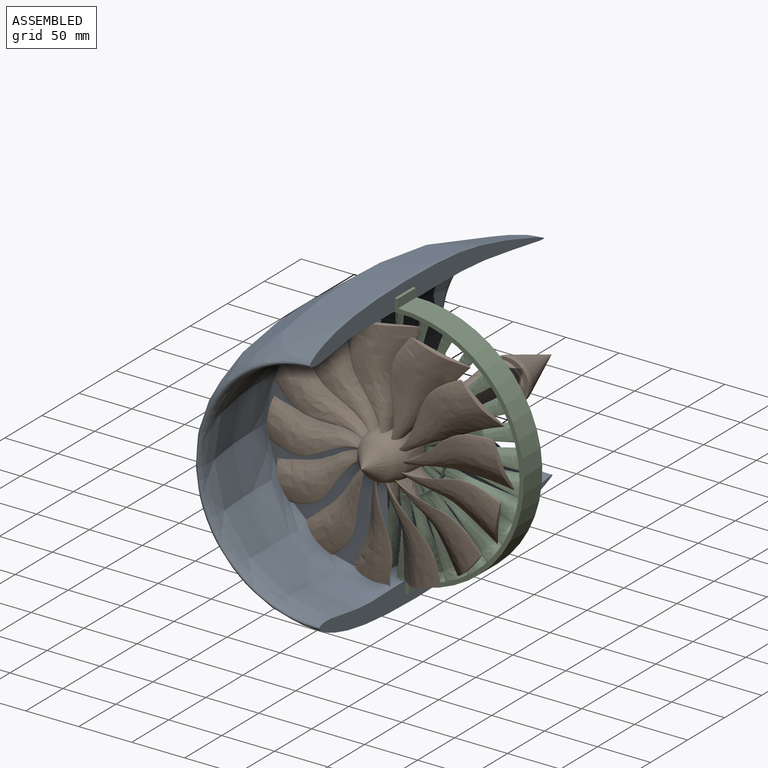
[diagram: assembled view]
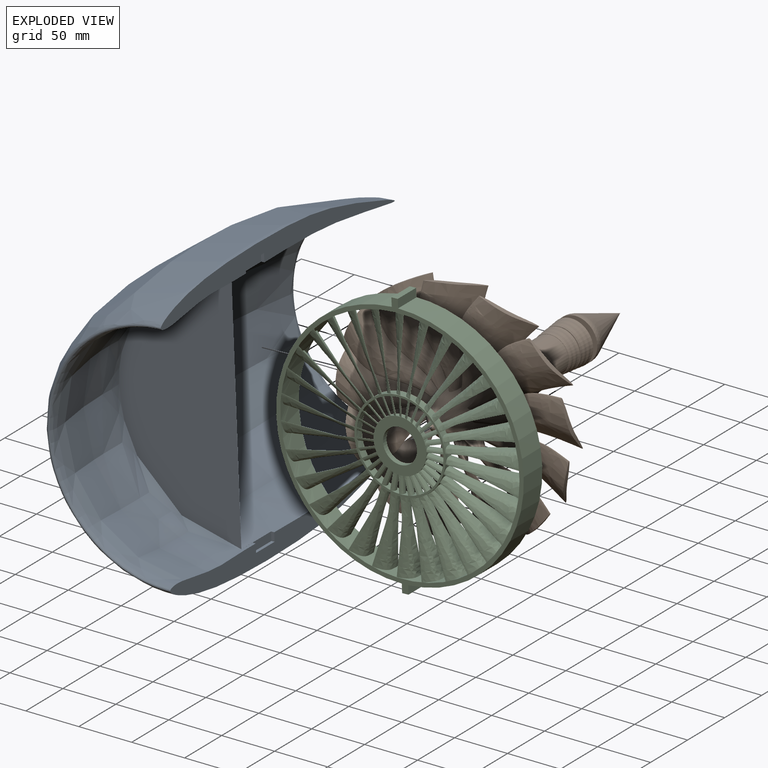
[diagram: exploded view]
GUIDED TOUR — MATED ASSEMBLY WITH SUBASSEMBLIES (Onshape document 25e5f7120bf1b2f45c059222, AutoMate assembly 25e5f7120bf1b2f45c059222_7cb774750ce1b9bcfdf965f8_65849fbbaa7d7448154517cb_default)

This assembly has 8 component occurrences arranged in 3 top-level units: 2 individual components plus 1 subassembly (S0). The tour has two levels: first the top level, where each subassembly is treated as one rigid unit; then each subassembly is toured internally in its own section (nesting deeper than one subassembly level is flattened into its subassembly's section).

Components are labeled P0..P7 across the whole record; subassembly units are labeled S0..S0. A mate is a constraint between two units; its type names the relative motion it leaves free:
  CYLINDRICAL — leaves both rotation about and translation along the listed axis free,
  PLANAR — leaves sliding in the plane through the listed point (normal = the listed direction) and rotation about that normal free,
  SLIDER — leaves translation along the listed axis free.
Axis/direction vectors are unit vectors and 'through' points are millimeter coordinates, both in the assembly's world frame.

TOP-LEVEL MATES (between units; each subassembly's internal mates are listed in its own section)
  1. PLANAR "Planar 1": P3 <-> P0, direction (-0.999, 0.000, -0.041) through (-118.48, 17.94, 122.36) mm
  2. CYLINDRICAL "Cylindrical 1": P3 <-> S0, axis (0.000, 1.000, 0.000) through (-110.56, 18.05, 1.60) mm
  3. CYLINDRICAL "Cylindrical 2": P3 <-> P0, axis (0.000, 1.000, 0.000) through (-110.56, 30.55, 1.60) mm
  4. PLANAR "Planar 2": P0 <-> P3, direction (0.000, 1.000, 0.000) through (-115.20, 5.55, 115.50) mm

TOP-LEVEL ASSEMBLY ORDER
  1. P3 — the base component [order heuristic]
  2. P0 [order heuristic]
  3. S0 [order heuristic]
Order-tag legend:
  [order heuristic] — this assembly is geometrically interlocked (no collision-free removal order exists), so components are listed in mate-graph order; insertion feasibility is not verified.

Of the 8 component occurrences, 5 carry the full construction recipe — the FeatureScript program that regenerates the part's solid from scratch; the rest are supplied as boundary geometry only. Each toured unit is shown spotlighted twice — assembled, then exploded with a leader line back to its socket (green = recipe-attached component, orange = geometry-only, blue = subassembly unit; the rest desaturated gray).
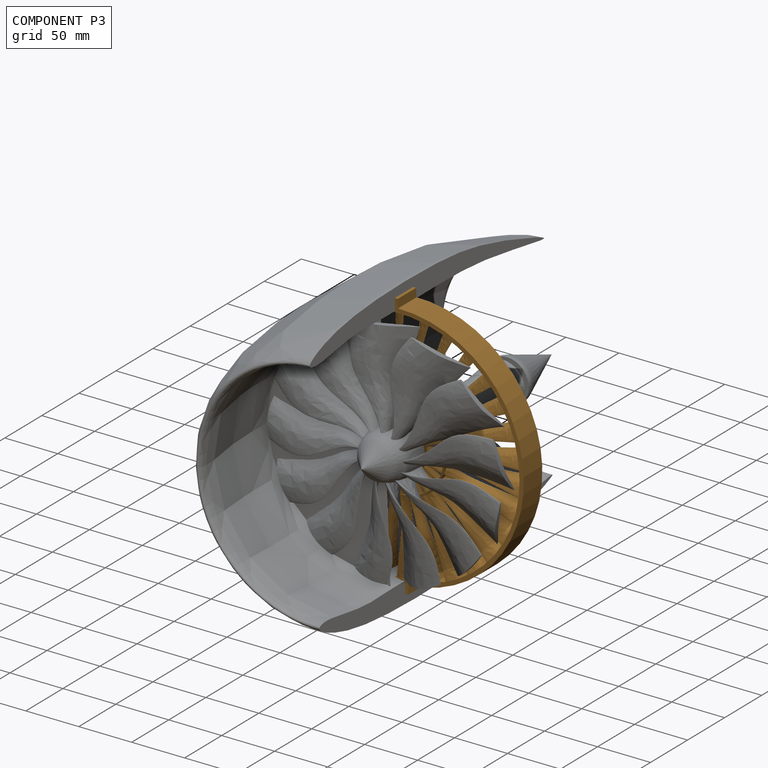
[diagram: component P3 — assembled]
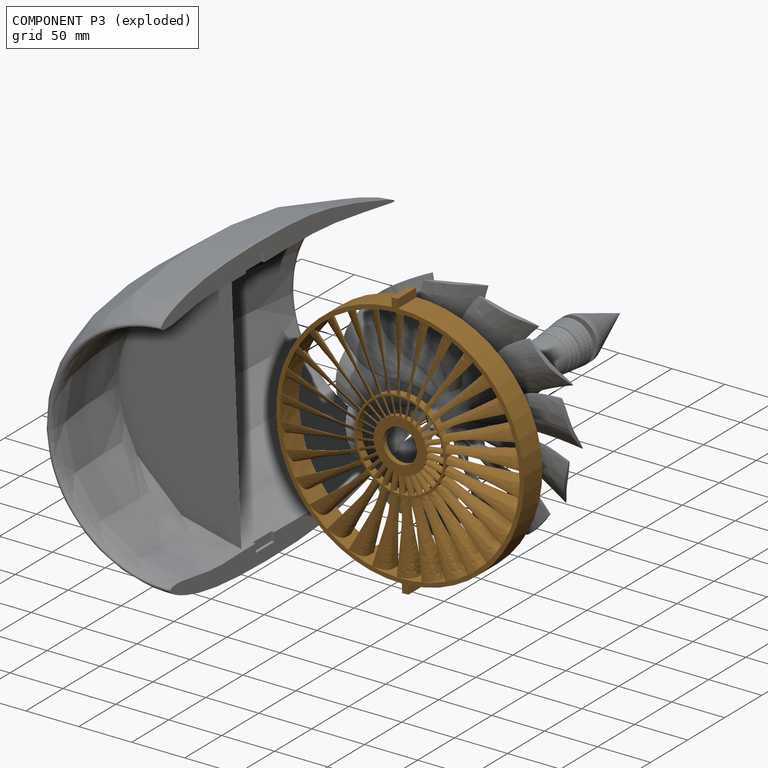
[diagram: component P3 — exploded]
COMPONENT P3 — geometry summary (no construction recipe available for this part):
  bounding box: 250.0 x 234.0 x 25.0 mm
  B-rep topology: 1 solid, 80 faces, 584 edges
  volume: 18700 mm^3 (1% of its bounding box)
  symmetry: 2-fold rotationally symmetric about the y axis
Held by: PLANAR mate "Planar 1" to P0; CYLINDRICAL mate "Cylindrical 1" to P1; CYLINDRICAL mate "Cylindrical 2" to P0; PLANAR mate "Planar 2" to P0.
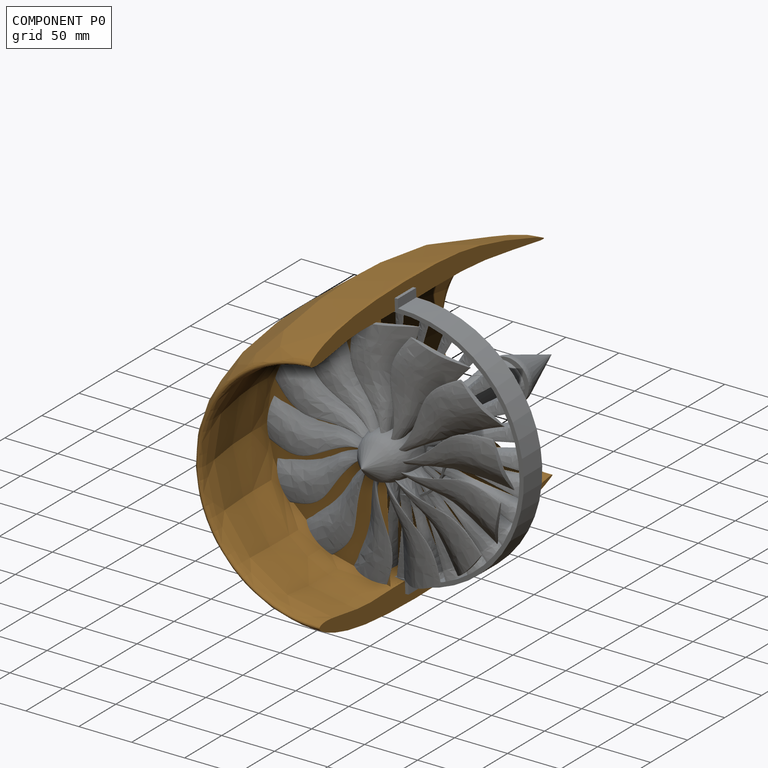
[diagram: component P0 — assembled]
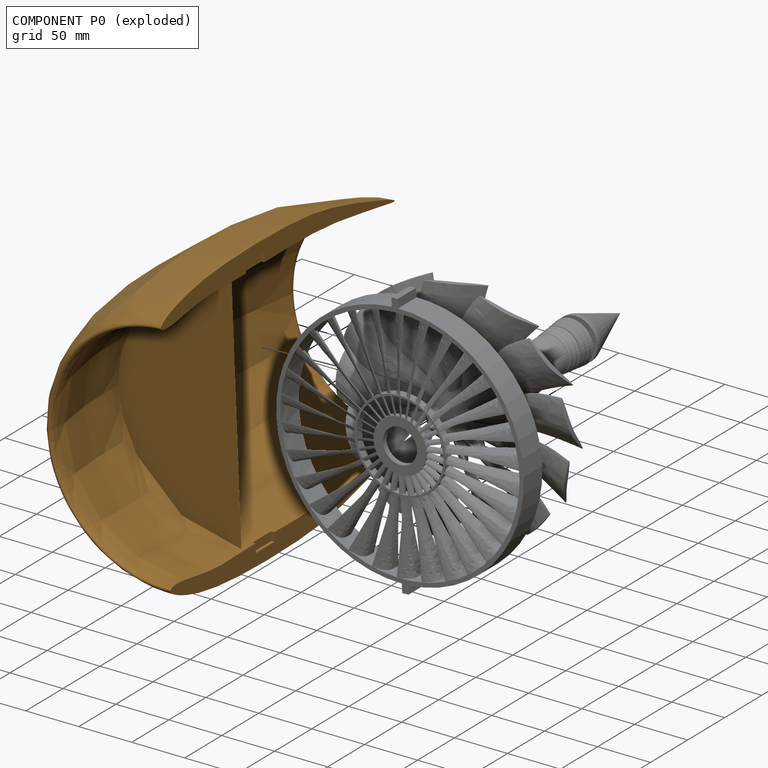
[diagram: component P0 — exploded]
COMPONENT P0 — geometry summary (no construction recipe available for this part):
  bounding box: 322.5 x 269.2 x 133.7 mm
  B-rep topology: 1 solid, 15 faces, 70 edges
  volume: 1758936 mm^3 (15% of its bounding box)
  symmetry: mirror-symmetric across its z mid-plane
Held by: PLANAR mate "Planar 1" to P3; CYLINDRICAL mate "Cylindrical 2" to P3; PLANAR mate "Planar 2" to P3.
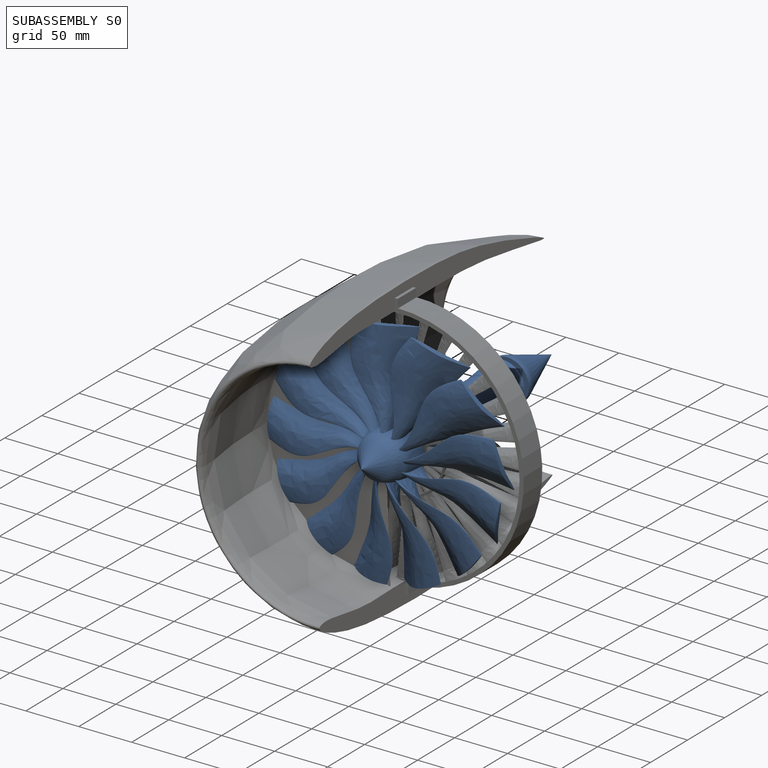
[diagram: subassembly S0 — assembled]
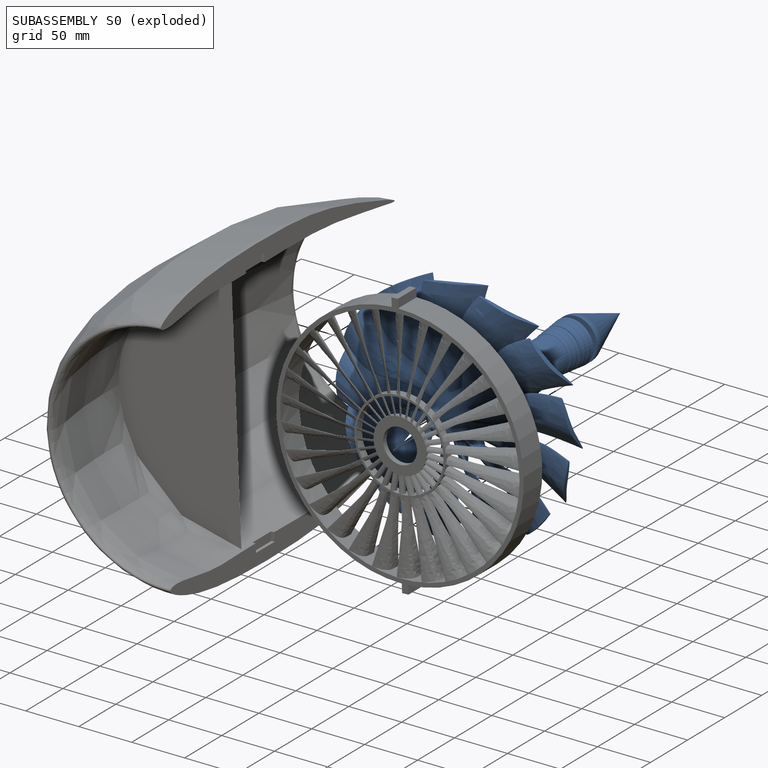
[diagram: subassembly S0 — exploded]
SUBASSEMBLY S0 — 6 components (P1, P2, P4, P5, P6, P7), of which 5 recipe-attached; toured below.
Held by: CYLINDRICAL mate "Cylindrical 1" to P3.
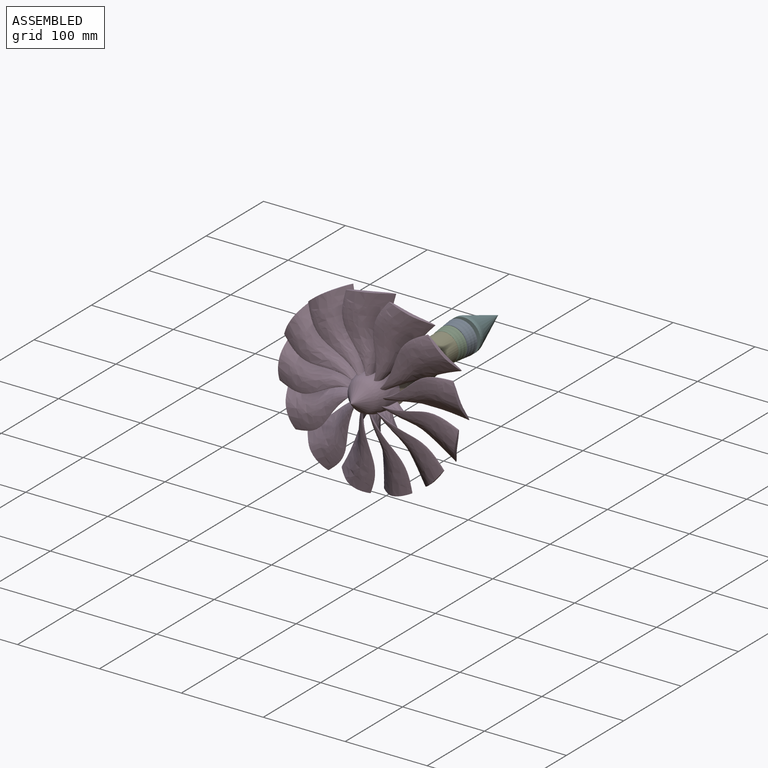
[diagram: subassembly S0 — assembled view]
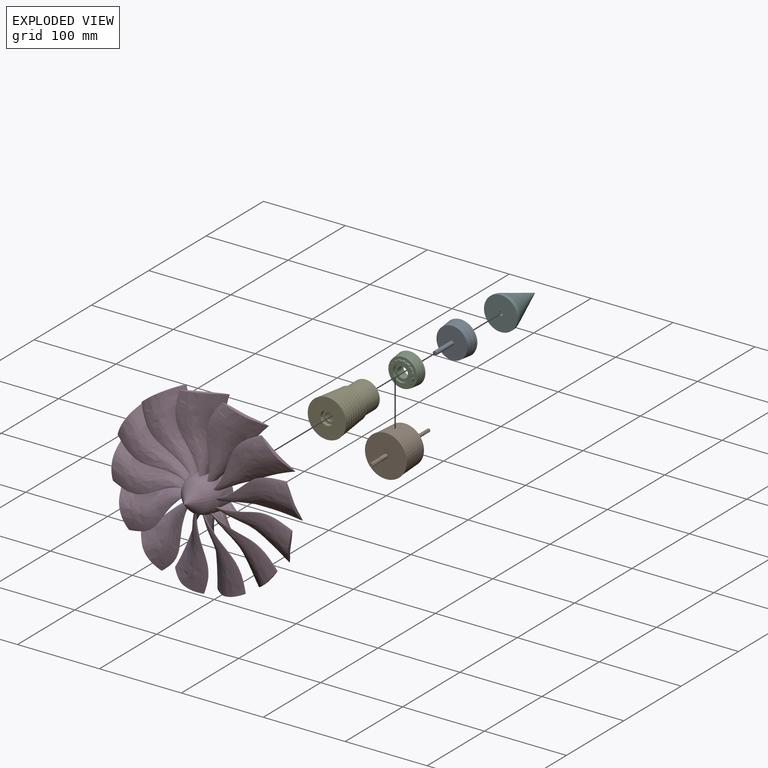
[diagram: subassembly S0 — exploded view]
SUBASSEMBLY S0 TOUR — 6 components, shown here in isolation at its own camera.

INTERNAL MATES
  1. PLANAR "Planar 1": P5 <-> P2, direction (0.000, 1.000, 0.000) through (-110.56, 3.41, 1.60) mm
  2. PLANAR "Planar 4": P7 <-> P1, direction (0.000, -1.000, 0.000) through (-110.56, 150.22, 1.60) mm
  3. CYLINDRICAL "Cylindrical 1": P6 <-> P2, axis (0.000, -1.000, 0.000) through (-110.56, 91.41, 1.60) mm
  4. CYLINDRICAL "Cylindrical 4": P7 <-> P1, axis (0.000, -1.000, 0.000) through (-110.56, 150.22, 1.60) mm
  5. CYLINDRICAL "Cylindrical 2": P6 <-> P4, axis (0.000, -1.000, 0.000) through (-110.56, 103.91, 1.60) mm
  6. SLIDER "Slider 1": P2 <-> P5, axis (0.000, 1.000, 0.000) through (-110.56, 8.91, 1.60) mm
  7. PLANAR "Planar 2": P6 <-> P4, direction (0.000, 1.000, 0.000) through (-96.98, 116.41, 7.97) mm
  8. PLANAR "Planar 3": P6 <-> P2, direction (0.000, -1.000, 0.000) through (-110.56, 53.41, 1.60) mm
  9. CYLINDRICAL "Cylindrical 3": P4 <-> P1, axis (0.000, -1.000, 0.000) through (-110.56, 118.91, 1.60) mm
  10. CYLINDRICAL "Cylindrical 4": P7 <-> P1, axis (0.000, -1.000, 0.000) through (-110.56, 150.22, 1.60) mm
  11. CYLINDRICAL "Cylindrical 1": P6 <-> P2, axis (0.000, -1.000, 0.000) through (-110.56, 91.41, 1.60) mm
  12. PLANAR "Planar 3": P6 <-> P2, direction (0.000, -1.000, 0.000) through (-110.56, 53.41, 1.60) mm
  13. SLIDER "Slider 1": P2 <-> P5, axis (0.000, 1.000, 0.000) through (-110.56, 8.91, 1.60) mm
  14. CYLINDRICAL "Cylindrical 3": P4 <-> P1, axis (0.000, -1.000, 0.000) through (-110.56, 118.91, 1.60) mm
  15. CYLINDRICAL "Cylindrical 2": P6 <-> P4, axis (0.000, -1.000, 0.000) through (-110.56, 103.91, 1.60) mm
  16. PLANAR "Planar 4": P7 <-> P1, direction (0.000, -1.000, 0.000) through (-110.56, 150.22, 1.60) mm
  17. PLANAR "Planar 2": P6 <-> P4, direction (0.000, 1.000, 0.000) through (-96.98, 116.41, 7.97) mm
  18. PLANAR "Planar 1": P5 <-> P2, direction (0.000, 1.000, 0.000) through (-110.56, 3.41, 1.60) mm

ASSEMBLY ORDER (within the subassembly)
  1. P1 — the base component [order heuristic]
  2. P4 [order verified]
  3. P7 — core [order heuristic]
  4. P6 [order verified]
  5. P2 [order verified]
  6. P5 [order verified]
(P6 verified with a relaxed clearance tolerance: the source model stores slight part interference there.)
Order-tag legend:
  [order verified] — this step's position reverses a verified removal order: the component was checked to insert without passing through the ones already placed.
  [order heuristic] — the first 2 components form the assembly's core: parts whose collision-free extraction could not be verified, listed in mate-graph order.
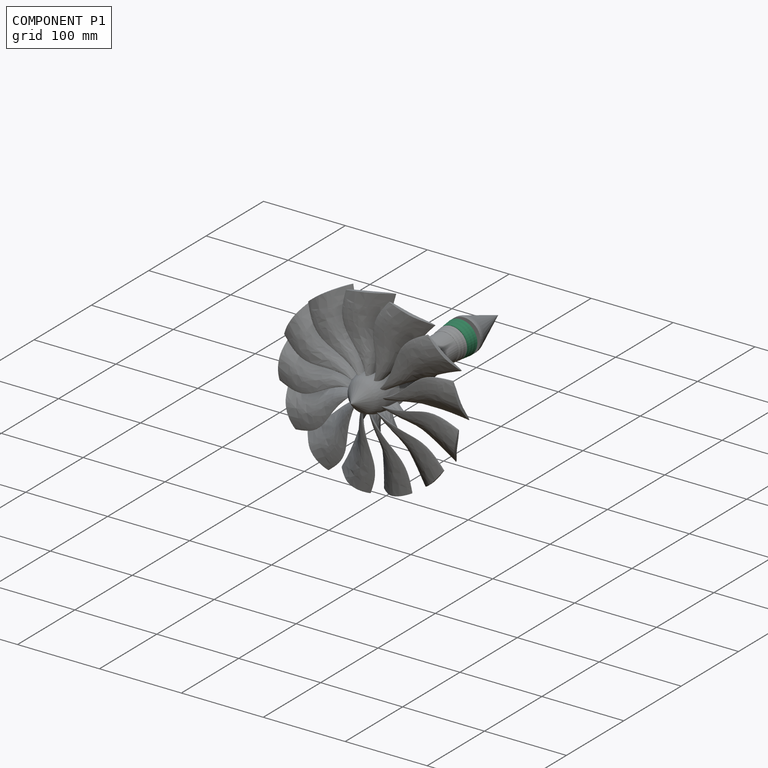
[diagram: component P1 — assembled]
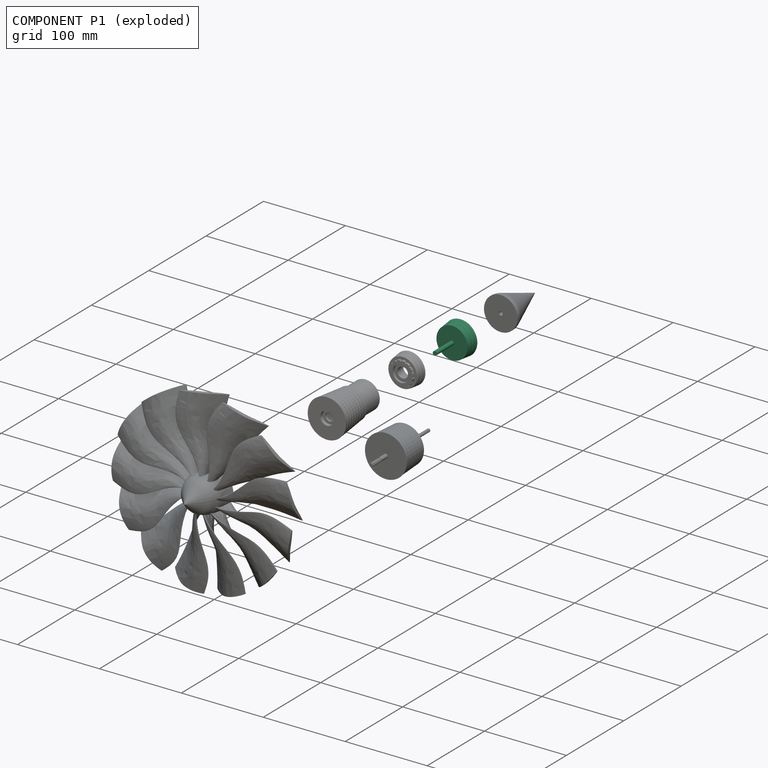
[diagram: component P1 — exploded]
COMPONENT P1 — recipe-attached (CADFS 00669145, mesh-verified: the recipe's output STEP matches this component's geometry to below the mesh-comparison resolution (tessellation chordal tolerance ~0.126 mm)).
Held by: PLANAR mate "Planar 4" to P7; CYLINDRICAL mate "Cylindrical 4" to P7; CYLINDRICAL mate "Cylindrical 3" to P4; CYLINDRICAL mate "Cylindrical 4" to P7; CYLINDRICAL mate "Cylindrical 3" to P4; PLANAR mate "Planar 4" to P7.
Construction recipe (FeatureScript — the CAD program that rebuilds this solid; sketch coordinates are in the units given by the * unit suffixes, e.g. mm):

FeatureScript 1511;
import(path : "onshape/std/geometry.fs", version : "1511.0");
import(path : "onshape/std/common.fs", version : "1511.0");
const mm = millimeter;
const VERTEX = EntityType.VERTEX;
const EDGE = EntityType.EDGE;
const FACE = EntityType.FACE;
const BODY = EntityType.BODY;
function v(x, y){return vector(x, y);}
function OD(order){return orderDisambiguation(order);}
function OSD(set){return originalSetDisambiguation(set);}
function TD(topology){return topologyDisambiguation(topology);}
function TDD(query){return trueDependencyDisambiguation(query);}
function sQuery(a, b, c) {return sketchEntityQuery(a, b, c);}

annotation { "Feature Type Name" : "Feature", "Feature Type Description" : "" }
export const myFeature = defineFeature(function(context is Context, id is Id, definition is map)
    precondition{}
    {
        {
            var Q0;
            Q0=qCreatedBy(makeId("Right.planeOp"),FACE);
            var sketch = newSketch(context, id + "F0", { "sketchPlane" : qUnion([Q0])});
            skLineSegment(sketch, "E0", {"start": v(0, 0) * mm, "end": v(-30, 0) * mm, "construction": true});
            skLineSegment(sketch, "E1", {"start": v(-30, 0) * mm, "end": v(-30, 2.47) * mm});
            skLineSegment(sketch, "E2", {"start": v(-30, 2.48) * mm, "end": v(0, 2.48) * mm});
            skLineSegment(sketch, "E3", {"start": v(0, 2.47) * mm, "end": v(0, 19) * mm});
            skLineSegment(sketch, "E4", {"start": v(0, 19) * mm, "end": v(2.5, 19) * mm});
            skLineSegment(sketch, "E5", {"start": v(2.5, 19) * mm, "end": v(5, 19.5) * mm});
            skLineSegment(sketch, "E6", {"start": v(5, 19.5) * mm, "end": v(7.5, 19.5) * mm});
            skLineSegment(sketch, "E7", {"start": v(7.5, 19.5) * mm, "end": v(10, 20) * mm});
            skLineSegment(sketch, "E8", {"start": v(10, 20) * mm, "end": v(12.5, 20) * mm});
            skLineSegment(sketch, "E9", {"start": v(12.5, 20) * mm, "end": v(15, 20.5) * mm});
            skLineSegment(sketch, "E10", {"start": v(15, 20.5) * mm, "end": v(15, 2.48) * mm});
            skLineSegment(sketch, "E11", {"start": v(15, 2.48) * mm, "end": v(20.5, 2.48) * mm});
            skLineSegment(sketch, "E12", {"start": v(30.5, 0) * mm, "end": v(-30, 0) * mm});
            skLineSegment(sketch, "E13", {"start": v(20.5, 2.48) * mm, "end": v(20.5, 2) * mm});
            skLineSegment(sketch, "E14", {"start": v(20.5, 2) * mm, "end": v(30.5, 2) * mm});
            skLineSegment(sketch, "E15", {"start": v(30.5, 2) * mm, "end": v(30.5, 0) * mm});
            skSolve(sketch);
        }
        {
            var Q0;
            Q0 = qSketchRegion(id + "F0", true);
            var Q1;
            Q1=sQuery(id+"F0.wireOp",EDGE,"E12");
            revolve(context, id + "F1", {"entities" : qUnion([Q0]), "axis" : qUnion([Q1]), "revolveType" : RevolveType.FULL});
        }
    });
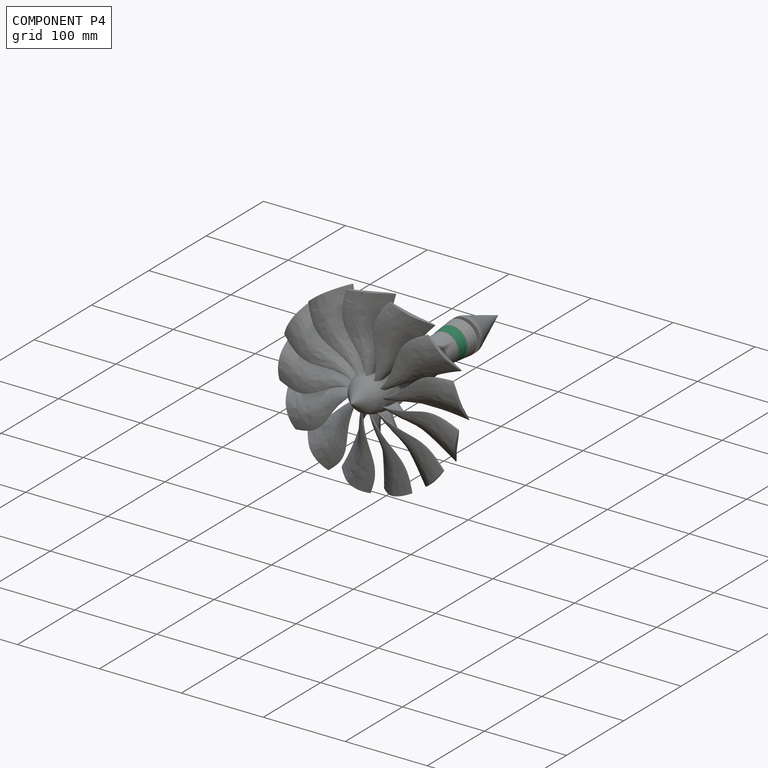
[diagram: component P4 — assembled]
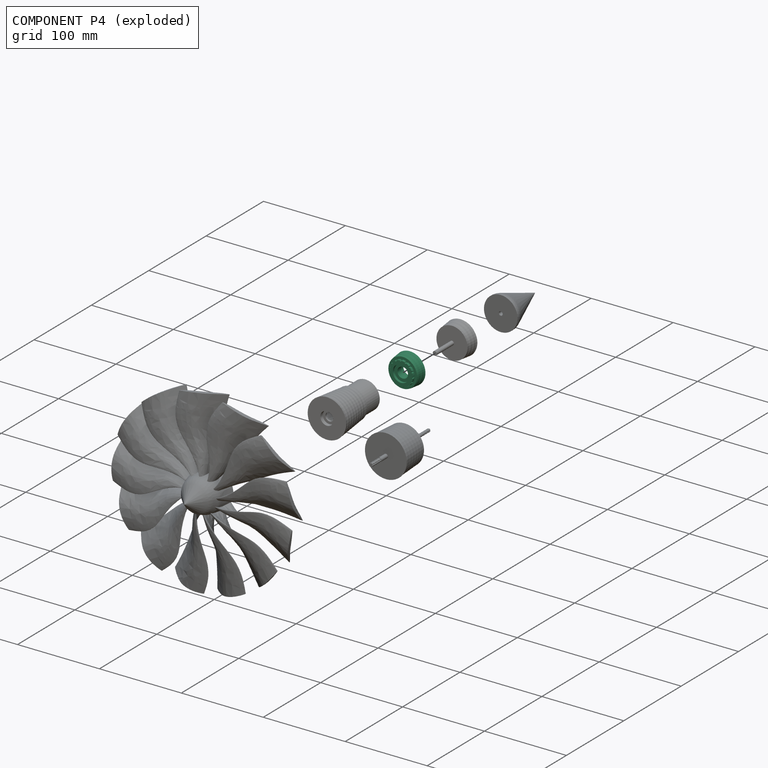
[diagram: component P4 — exploded]
COMPONENT P4 — recipe-attached (CADFS 00669142, mesh-verified: the recipe's output STEP matches this component's geometry to below the mesh-comparison resolution (tessellation chordal tolerance ~0.0839 mm)).
Held by: CYLINDRICAL mate "Cylindrical 2" to P6; PLANAR mate "Planar 2" to P6; CYLINDRICAL mate "Cylindrical 3" to P1; CYLINDRICAL mate "Cylindrical 3" to P1; CYLINDRICAL mate "Cylindrical 2" to P6; PLANAR mate "Planar 2" to P6.
Construction recipe (FeatureScript — the CAD program that rebuilds this solid; sketch coordinates are in the units given by the * unit suffixes, e.g. mm):

FeatureScript 1511;
import(path : "onshape/std/geometry.fs", version : "1511.0");
import(path : "onshape/std/common.fs", version : "1511.0");
const mm = millimeter;
const VERTEX = EntityType.VERTEX;
const EDGE = EntityType.EDGE;
const FACE = EntityType.FACE;
const BODY = EntityType.BODY;
function v(x, y){return vector(x, y);}
function OD(order){return orderDisambiguation(order);}
function OSD(set){return originalSetDisambiguation(set);}
function TD(topology){return topologyDisambiguation(topology);}
function TDD(query){return trueDependencyDisambiguation(query);}
function sQuery(a, b, c) {return sketchEntityQuery(a, b, c);}

annotation { "Feature Type Name" : "Feature", "Feature Type Description" : "" }
export const myFeature = defineFeature(function(context is Context, id is Id, definition is map)
    precondition{}
    {
        {
            var Q0;
            Q0=qCreatedBy(makeId("Right.planeOp"),FACE);
            var sketch = newSketch(context, id + "F0", { "sketchPlane" : qUnion([Q0])});
            skLineSegment(sketch, "E0", {"start": v(0, 0) * mm, "end": v(41.77, 0) * mm, "construction": true});
            skLineSegment(sketch, "E1", {"start": v(7, 6.5) * mm, "end": v(0, 6.5) * mm});
            skLineSegment(sketch, "E2", {"start": v(0, 6.5) * mm, "end": v(0, 10.05) * mm});
            skLineSegment(sketch, "E3", {"start": v(0, 10.05) * mm, "end": v(-3, 10.05) * mm});
            skLineSegment(sketch, "E4", {"start": v(-3, 10.05) * mm, "end": v(-3, 14.5) * mm});
            skLineSegment(sketch, "E5", {"start": v(-3, 14.5) * mm, "end": v(0, 14.5) * mm});
            skLineSegment(sketch, "E6", {"start": v(0, 14.5) * mm, "end": v(0, 17.5) * mm});
            skLineSegment(sketch, "E7", {"start": v(0, 17.5) * mm, "end": v(2.5, 18) * mm});
            skLineSegment(sketch, "E8", {"start": v(2.5, 18) * mm, "end": v(5, 18) * mm});
            skLineSegment(sketch, "E9", {"start": v(5, 18) * mm, "end": v(7.5, 18.5) * mm});
            skLineSegment(sketch, "E10", {"start": v(7.5, 18.5) * mm, "end": v(10, 18.5) * mm});
            skLineSegment(sketch, "E11", {"start": v(10, 18.5) * mm, "end": v(12.5, 19) * mm});
            skLineSegment(sketch, "E12", {"start": v(12.5, 19) * mm, "end": v(12.5, 8.05) * mm});
            skLineSegment(sketch, "E13", {"start": v(7, 8.05) * mm, "end": v(12.5, 8.05) * mm});
            skLineSegment(sketch, "E14", {"start": v(7, 8.05) * mm, "end": v(7, 6.5) * mm});
            skSolve(sketch);
        }
        {
            var Q0;
            Q0 = qSketchRegion(id + "F0", true);
            var Q1;
            Q1=sQuery(id+"F0.wireOp",EDGE,"E0");
            revolve(context, id + "F1", {"entities" : qUnion([Q0]), "axis" : qUnion([Q1]), "revolveType" : RevolveType.FULL});
        }
        {
            var Q0;
            Q0=makeQuery(id+"F1.opRevolve","SWEPT_FACE",FACE,{"disambiguationData":[OSD([sQuery(id+"F0.wireOp",EDGE,"E4")])]});
            var sketch = newSketch(context, id + "F2", { "sketchPlane" : qUnion([Q0])});
            skArc(sketch, "E15", {"start": v(-1, 14.47) * mm, "mid": v(0, 13.5) * mm, "end": v(1, 14.47) * mm});
            skArc(sketch, "E16", {"start": v(1, 14.47) * mm, "mid": v(0, 14.5) * mm, "end": v(-1, 14.47) * mm});
            skArc(sketch, "E17.1.0", {"start": v(-6.8, 12.8) * mm, "mid": v(-5.5, 12.33) * mm, "end": v(-4.97, 13.62) * mm});
            skArc(sketch, "E17.1.1", {"start": v(-4.97, 13.62) * mm, "mid": v(-5.9, 13.25) * mm, "end": v(-6.8, 12.8) * mm});
            skArc(sketch, "E17.2.0", {"start": v(-11.42, 8.94) * mm, "mid": v(-10.03, 9.03) * mm, "end": v(-10.08, 10.42) * mm});
            skArc(sketch, "E17.2.1", {"start": v(-10.08, 10.42) * mm, "mid": v(-10.78, 9.7) * mm, "end": v(-11.42, 8.94) * mm});
            skArc(sketch, "E17.3.0", {"start": v(-14.07, 3.52) * mm, "mid": v(-12.84, 4.17) * mm, "end": v(-13.45, 5.42) * mm});
            skArc(sketch, "E17.3.1", {"start": v(-13.45, 5.42) * mm, "mid": v(-13.8, 4.48) * mm, "end": v(-14.07, 3.52) * mm});
            skArc(sketch, "E17.4.0", {"start": v(-14.28, -2.5) * mm, "mid": v(-13.43, -1.41) * mm, "end": v(-14.5, -0.52) * mm});
            skArc(sketch, "E17.4.1", {"start": v(-14.5, -0.52) * mm, "mid": v(-14.42, -1.52) * mm, "end": v(-14.28, -2.5) * mm});
            skArc(sketch, "E17.5.0", {"start": v(-12.03, -8.1) * mm, "mid": v(-11.7, -6.75) * mm, "end": v(-13.03, -6.37) * mm});
            skArc(sketch, "E17.5.1", {"start": v(-13.03, -6.37) * mm, "mid": v(-12.56, -7.25) * mm, "end": v(-12.03, -8.1) * mm});
            skArc(sketch, "E17.6.0", {"start": v(-7.7, -12.3) * mm, "mid": v(-7.93, -10.92) * mm, "end": v(-9.31, -11.12) * mm});
            skArc(sketch, "E17.6.1", {"start": v(-9.31, -11.12) * mm, "mid": v(-8.52, -11.73) * mm, "end": v(-7.7, -12.3) * mm});
            skArc(sketch, "E17.7.0", {"start": v(-2.03, -14.36) * mm, "mid": v(-2.8, -13.2) * mm, "end": v(-3.99, -13.94) * mm});
            skArc(sketch, "E17.7.1", {"start": v(-3.99, -13.94) * mm, "mid": v(-3.01, -14.18) * mm, "end": v(-2.03, -14.36) * mm});
            skArc(sketch, "E17.8.0", {"start": v(3.99, -13.94) * mm, "mid": v(2.8, -13.2) * mm, "end": v(2.03, -14.36) * mm});
            skArc(sketch, "E17.8.1", {"start": v(2.03, -14.36) * mm, "mid": v(3.01, -14.18) * mm, "end": v(3.99, -13.94) * mm});
            skArc(sketch, "E17.9.0", {"start": v(9.31, -11.12) * mm, "mid": v(7.93, -10.92) * mm, "end": v(7.7, -12.3) * mm});
            skArc(sketch, "E17.9.1", {"start": v(7.7, -12.3) * mm, "mid": v(8.52, -11.73) * mm, "end": v(9.31, -11.12) * mm});
            skArc(sketch, "E17.10.0", {"start": v(13.03, -6.37) * mm, "mid": v(11.7, -6.75) * mm, "end": v(12.03, -8.1) * mm});
            skArc(sketch, "E17.10.1", {"start": v(12.03, -8.1) * mm, "mid": v(12.56, -7.25) * mm, "end": v(13.03, -6.37) * mm});
            skArc(sketch, "E17.11.0", {"start": v(14.5, -0.52) * mm, "mid": v(13.43, -1.41) * mm, "end": v(14.28, -2.5) * mm});
            skArc(sketch, "E17.11.1", {"start": v(14.28, -2.5) * mm, "mid": v(14.42, -1.52) * mm, "end": v(14.5, -0.52) * mm});
            skArc(sketch, "E17.12.0", {"start": v(13.45, 5.42) * mm, "mid": v(12.84, 4.17) * mm, "end": v(14.07, 3.52) * mm});
            skArc(sketch, "E17.12.1", {"start": v(14.07, 3.52) * mm, "mid": v(13.8, 4.48) * mm, "end": v(13.45, 5.42) * mm});
            skArc(sketch, "E17.13.0", {"start": v(10.08, 10.42) * mm, "mid": v(10.03, 9.03) * mm, "end": v(11.42, 8.94) * mm});
            skArc(sketch, "E17.13.1", {"start": v(11.42, 8.94) * mm, "mid": v(10.78, 9.7) * mm, "end": v(10.08, 10.42) * mm});
            skArc(sketch, "E17.14.0", {"start": v(4.97, 13.62) * mm, "mid": v(5.5, 12.33) * mm, "end": v(6.8, 12.8) * mm});
            skArc(sketch, "E17.14.1", {"start": v(6.8, 12.8) * mm, "mid": v(5.9, 13.25) * mm, "end": v(4.97, 13.62) * mm});
            skSolve(sketch);
        }
        {
            var Q0;
            Q0 = qSketchRegion(id + "F2", true);
            extrude(context, id + "F3", {"entities" : qUnion([Q0]), "operationType" : NewBodyOperationType.REMOVE, "oppositeDirection" : true, "depth" : 3 * mm, "offsetDistance" : 25 * mm});
        }
    });
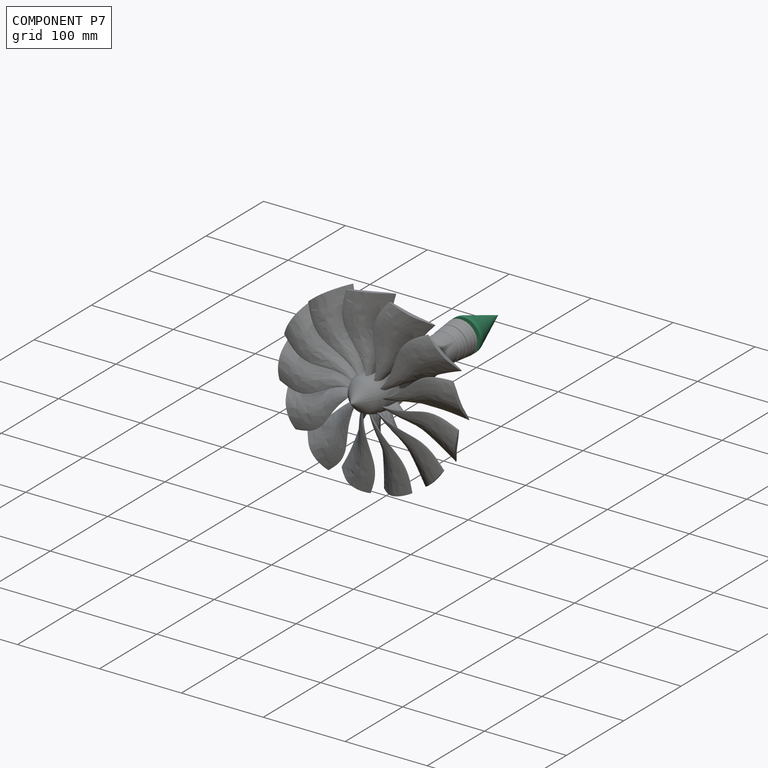
[diagram: component P7 — assembled]
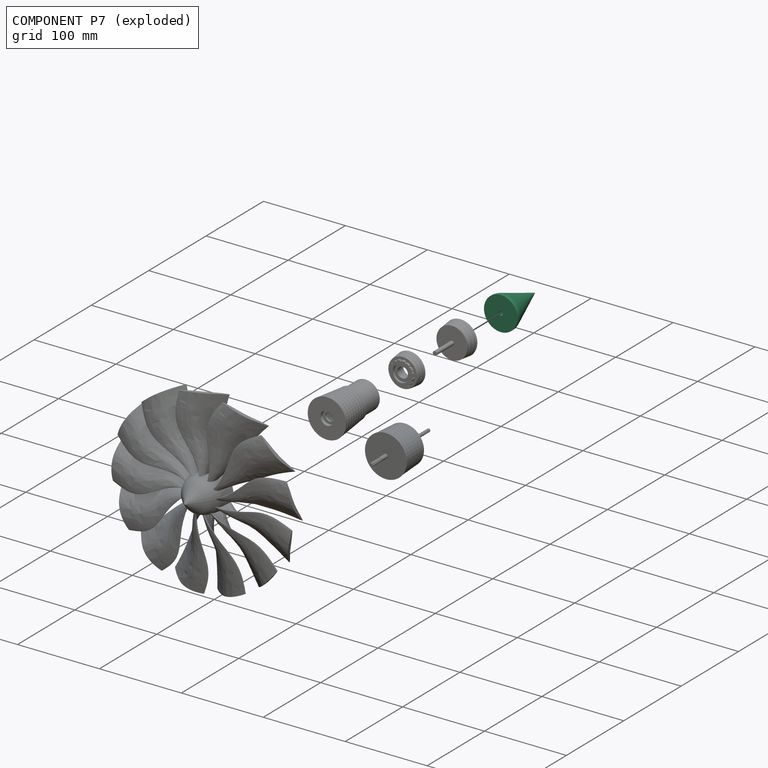
[diagram: component P7 — exploded]
COMPONENT P7 — recipe-attached (CADFS 00669144, mesh-verified: the recipe's output STEP matches this component's geometry to below the mesh-comparison resolution (tessellation chordal tolerance ~0.125 mm)).
Held by: PLANAR mate "Planar 4" to P1; CYLINDRICAL mate "Cylindrical 4" to P1; CYLINDRICAL mate "Cylindrical 4" to P1; PLANAR mate "Planar 4" to P1.
Construction recipe (FeatureScript — the CAD program that rebuilds this solid; sketch coordinates are in the units given by the * unit suffixes, e.g. mm):

FeatureScript 1511;
import(path : "onshape/std/geometry.fs", version : "1511.0");
import(path : "onshape/std/common.fs", version : "1511.0");
const mm = millimeter;
const VERTEX = EntityType.VERTEX;
const EDGE = EntityType.EDGE;
const FACE = EntityType.FACE;
const BODY = EntityType.BODY;
function v(x, y){return vector(x, y);}
function OD(order){return orderDisambiguation(order);}
function OSD(set){return originalSetDisambiguation(set);}
function TD(topology){return topologyDisambiguation(topology);}
function TDD(query){return trueDependencyDisambiguation(query);}
function sQuery(a, b, c) {return sketchEntityQuery(a, b, c);}

annotation { "Feature Type Name" : "Feature", "Feature Type Description" : "" }
export const myFeature = defineFeature(function(context is Context, id is Id, definition is map)
    precondition{}
    {
        {
            var Q0;
            Q0=qCreatedBy(makeId("Right.planeOp"),FACE);
            var sketch = newSketch(context, id + "F0", { "sketchPlane" : qUnion([Q0])});
            skLineSegment(sketch, "E0", {"start": v(0, 0) * mm, "end": v(0, 20.5) * mm});
            skLineSegment(sketch, "E1", {"start": v(0, 20.5) * mm, "end": v(1.34, 20.5) * mm});
            skLineSegment(sketch, "E2", {"start": v(6.5, 19.59) * mm, "end": v(60, 0) * mm});
            skLineSegment(sketch, "E3", {"start": v(60, 0) * mm, "end": v(0, 0) * mm});
            skPoint(sketch, "E4.visualSharp", {"position": v(4, 20.5) * mm});
            skArc(sketch, "E4.filletArc", {"start": v(6.5, 19.59) * mm, "mid": v(3.96, 20.27) * mm, "end": v(1.34, 20.5) * mm});
            skSolve(sketch);
        }
        {
            var Q0;
            Q0 = qSketchRegion(id + "F0", true);
            var Q1;
            Q1=sQuery(id+"F0.wireOp",EDGE,"E3");
            revolve(context, id + "F1", {"entities" : qUnion([Q0]), "axis" : qUnion([Q1]), "revolveType" : RevolveType.FULL});
        }
        {
            var Q0;
            Q0=qCreatedBy(makeId("Front.planeOp"),FACE);
            var sketch = newSketch(context, id + "F2", { "sketchPlane" : qUnion([Q0])});
            skCircle(sketch, "E5", {"center": v(0, 0) * mm, "radius": 2.38 * mm});
            skSolve(sketch);
        }
        {
            var Q0;
            Q0 = qSketchRegion(id + "F2", true);
            extrude(context, id + "F3", {"entities" : qUnion([Q0]), "operationType" : NewBodyOperationType.REMOVE, "oppositeDirection" : true, "depth" : 10 * mm, "offsetDistance" : 25 * mm});
        }
    });
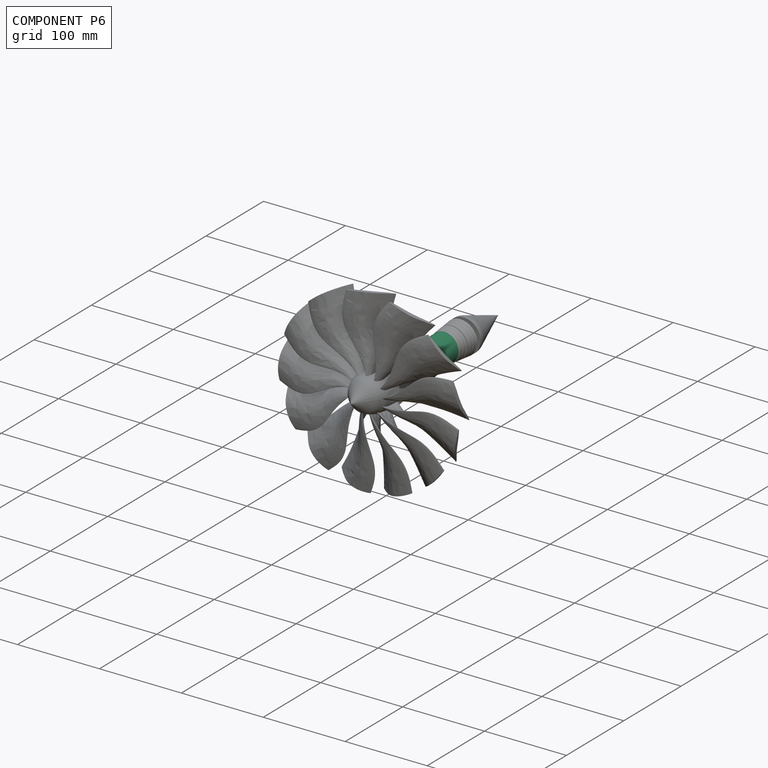
[diagram: component P6 — assembled]
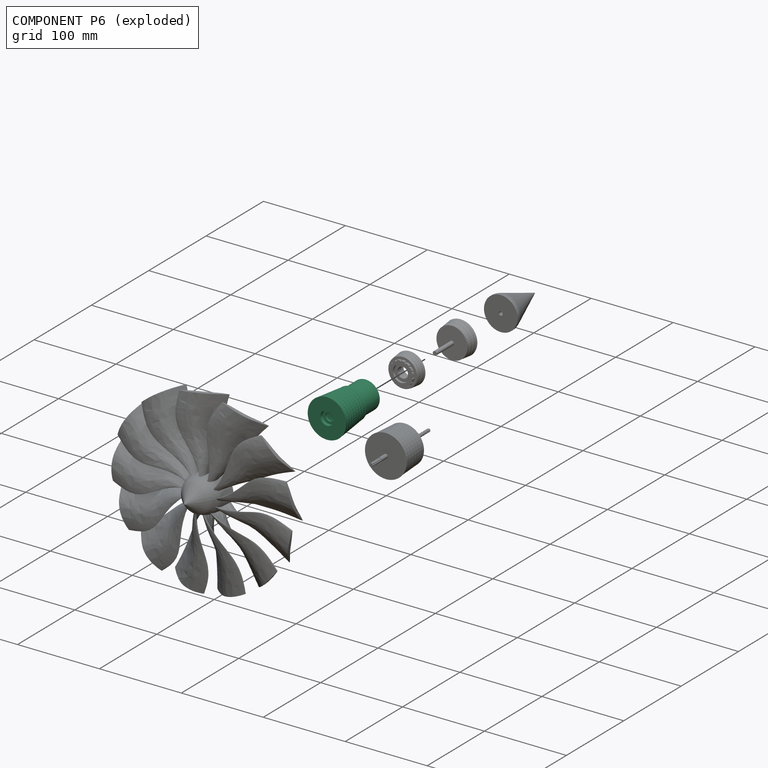
[diagram: component P6 — exploded]
COMPONENT P6 — recipe-attached (CADFS 00669143, mesh-verified: the recipe's output STEP matches this component's geometry to below the mesh-comparison resolution (tessellation chordal tolerance ~0.142 mm)).
Held by: CYLINDRICAL mate "Cylindrical 1" to P2; CYLINDRICAL mate "Cylindrical 2" to P4; PLANAR mate "Planar 2" to P4; PLANAR mate "Planar 3" to P2; CYLINDRICAL mate "Cylindrical 1" to P2; PLANAR mate "Planar 3" to P2; CYLINDRICAL mate "Cylindrical 2" to P4; PLANAR mate "Planar 2" to P4.
Construction recipe (FeatureScript — the CAD program that rebuilds this solid; sketch coordinates are in the units given by the * unit suffixes, e.g. mm):

FeatureScript 1511;
import(path : "onshape/std/geometry.fs", version : "1511.0");
import(path : "onshape/std/common.fs", version : "1511.0");
const mm = millimeter;
const VERTEX = EntityType.VERTEX;
const EDGE = EntityType.EDGE;
const FACE = EntityType.FACE;
const BODY = EntityType.BODY;
function v(x, y){return vector(x, y);}
function OD(order){return orderDisambiguation(order);}
function OSD(set){return originalSetDisambiguation(set);}
function TD(topology){return topologyDisambiguation(topology);}
function TDD(query){return trueDependencyDisambiguation(query);}
function sQuery(a, b, c) {return sketchEntityQuery(a, b, c);}

annotation { "Feature Type Name" : "Feature", "Feature Type Description" : "" }
export const myFeature = defineFeature(function(context is Context, id is Id, definition is map)
    precondition{}
    {
        {
            var Q0;
            Q0=qCreatedBy(makeId("Right.planeOp"),FACE);
            var sketch = newSketch(context, id + "F0", { "sketchPlane" : qUnion([Q0])});
            skLineSegment(sketch, "E0", {"start": v(0, 5) * mm, "end": v(0, 8.05) * mm});
            skLineSegment(sketch, "E1", {"start": v(0, 8.05) * mm, "end": v(-4.5, 8.05) * mm});
            skLineSegment(sketch, "E2", {"start": v(-4.5, 8.05) * mm, "end": v(-4.5, 23.5) * mm});
            skLineSegment(sketch, "E3", {"start": v(-4.5, 23.5) * mm, "end": v(-2, 23) * mm});
            skLineSegment(sketch, "E4", {"start": v(-2, 23) * mm, "end": v(0.5, 23) * mm});
            skLineSegment(sketch, "E5", {"start": v(0.5, 23) * mm, "end": v(3, 22.5) * mm});
            skLineSegment(sketch, "E6", {"start": v(3, 22.5) * mm, "end": v(5.5, 22.5) * mm});
            skLineSegment(sketch, "E7", {"start": v(5.5, 22.5) * mm, "end": v(8, 22) * mm});
            skLineSegment(sketch, "E8", {"start": v(8, 22) * mm, "end": v(10.5, 22) * mm});
            skLineSegment(sketch, "E9", {"start": v(10.5, 22) * mm, "end": v(13, 21.5) * mm});
            skLineSegment(sketch, "E10", {"start": v(13, 21.5) * mm, "end": v(15.5, 21.5) * mm});
            skLineSegment(sketch, "E11", {"start": v(15.5, 21.5) * mm, "end": v(18, 21) * mm});
            skLineSegment(sketch, "E12", {"start": v(18, 21) * mm, "end": v(20.5, 21) * mm});
            skLineSegment(sketch, "E13", {"start": v(20.5, 21) * mm, "end": v(23, 20.5) * mm});
            skLineSegment(sketch, "E14", {"start": v(23, 20.5) * mm, "end": v(25.5, 20.5) * mm});
            skLineSegment(sketch, "E15", {"start": v(25.5, 20.5) * mm, "end": v(28, 20) * mm});
            skLineSegment(sketch, "E16", {"start": v(28, 20) * mm, "end": v(30.5, 20) * mm});
            skLineSegment(sketch, "E17", {"start": v(30.5, 20) * mm, "end": v(33, 19.5) * mm});
            skLineSegment(sketch, "E18", {"start": v(33, 19.5) * mm, "end": v(35.5, 19.5) * mm});
            skLineSegment(sketch, "E19", {"start": v(38, 19.25) * mm, "end": v(38, 17.25) * mm});
            skLineSegment(sketch, "E20", {"start": v(38, 17.25) * mm, "end": v(63, 17.25) * mm});
            skLineSegment(sketch, "E21", {"start": v(0, 0) * mm, "end": v(49.8, 0) * mm, "construction": true});
            skLineSegment(sketch, "E22", {"start": v(0, 5) * mm, "end": v(1, 5) * mm});
            skLineSegment(sketch, "E23", {"start": v(4, 8) * mm, "end": v(4, 11.05) * mm});
            skLineSegment(sketch, "E24", {"start": v(35.45, 15.25) * mm, "end": v(51.5, 15.25) * mm});
            skLineSegment(sketch, "E25", {"start": v(35.5, 19.5) * mm, "end": v(38, 19.25) * mm});
            skLineSegment(sketch, "E26", {"start": v(35.15, 15.26) * mm, "end": v(1.8, 18.6) * mm});
            skLineSegment(sketch, "E27", {"start": v(-1.5, 15.62) * mm, "end": v(-1.5, 14.05) * mm});
            skLineSegment(sketch, "E28", {"start": v(1.5, 11.05) * mm, "end": v(4, 11.05) * mm});
            skPoint(sketch, "E29.visualSharp", {"position": v(-1.5, 18.93) * mm});
            skArc(sketch, "E29.filletArc", {"start": v(1.8, 18.6) * mm, "mid": v(-0.51, 17.84) * mm, "end": v(-1.5, 15.62) * mm});
            skPoint(sketch, "E30.visualSharp", {"position": v(-1.5, 11.05) * mm});
            skArc(sketch, "E30.filletArc", {"start": v(-1.5, 14.05) * mm, "mid": v(-0.62, 11.93) * mm, "end": v(1.5, 11.05) * mm});
            skLineSegment(sketch, "E31", {"start": v(54.5, 12.25) * mm, "end": v(54.5, 8) * mm});
            skLineSegment(sketch, "E32", {"start": v(57.5, 5) * mm, "end": v(58.5, 5) * mm});
            skLineSegment(sketch, "E33", {"start": v(58.5, 5) * mm, "end": v(58.5, 8.05) * mm});
            skLineSegment(sketch, "E34", {"start": v(58.5, 8.05) * mm, "end": v(63, 8.05) * mm});
            skLineSegment(sketch, "E35", {"start": v(63, 8.05) * mm, "end": v(63, 17.25) * mm});
            skPoint(sketch, "E36.visualSharp", {"position": v(54.5, 15.25) * mm});
            skArc(sketch, "E36.filletArc", {"start": v(54.5, 12.25) * mm, "mid": v(53.62, 14.37) * mm, "end": v(51.5, 15.25) * mm});
            skPoint(sketch, "E37.visualSharp", {"position": v(35.3, 15.25) * mm});
            skArc(sketch, "E37.filletArc", {"start": v(35.15, 15.26) * mm, "mid": v(35.3, 15.25) * mm, "end": v(35.45, 15.25) * mm});
            skPoint(sketch, "E38.visualSharp", {"position": v(54.5, 5) * mm});
            skArc(sketch, "E38.filletArc", {"start": v(54.5, 8) * mm, "mid": v(55.38, 5.88) * mm, "end": v(57.5, 5) * mm});
            skPoint(sketch, "E39.visualSharp", {"position": v(4, 5) * mm});
            skArc(sketch, "E39.filletArc", {"start": v(1, 5) * mm, "mid": v(3.12, 5.88) * mm, "end": v(4, 8) * mm});
            skSolve(sketch);
        }
        {
            var Q0;
            Q0=makeQuery(id+"F0.imprint","IMPRINT",FACE,{"disambiguationData":[TD([[makeQuery(id+"F0.imprint","IMPRINT",EDGE,{"derivedFrom":sQuery(id+"F0.wireOp",EDGE,"E0")}),-1.0]])]});
            var Q1;
            Q1=sQuery(id+"F0.wireOp",EDGE,"E21");
            revolve(context, id + "F1", {"entities" : qUnion([Q0]), "axis" : qUnion([Q1]), "revolveType" : RevolveType.FULL});
        }
        {
            var Q0;
            Q0=makeQuery(id+"F1.opRevolve","SWEPT_FACE",FACE,{"disambiguationData":[OSD([sQuery(id+"F0.wireOp",EDGE,"E35")])]});
            var sketch = newSketch(context, id + "F2", { "sketchPlane" : qUnion([Q0])});
            skCircle(sketch, "E40", {"center": v(0, 0) * mm, "radius": 10 * mm});
            skArc(sketch, "E41", {"start": v(-1.5, 14.92) * mm, "mid": v(0, 14.25) * mm, "end": v(1.5, 14.92) * mm});
            skArc(sketch, "E42.1.0", {"start": v(-7.44, 13.02) * mm, "mid": v(-5.8, 13.02) * mm, "end": v(-4.7, 14.24) * mm});
            skArc(sketch, "E42.2.0", {"start": v(-12.1, 8.87) * mm, "mid": v(-10.59, 9.53) * mm, "end": v(-10.09, 11.1) * mm});
            skArc(sketch, "E42.3.0", {"start": v(-14.66, 3.19) * mm, "mid": v(-13.55, 4.4) * mm, "end": v(-13.73, 6.04) * mm});
            skArc(sketch, "E42.4.0", {"start": v(-14.69, -3.05) * mm, "mid": v(-14.17, -1.49) * mm, "end": v(-15, -0.07) * mm});
            skArc(sketch, "E42.5.0", {"start": v(-12.18, -8.76) * mm, "mid": v(-12.34, -7.12) * mm, "end": v(-13.68, -6.16) * mm});
            skArc(sketch, "E42.6.0", {"start": v(-7.56, -12.96) * mm, "mid": v(-8.37, -11.53) * mm, "end": v(-9.99, -11.2) * mm});
            skArc(sketch, "E42.7.0", {"start": v(-1.64, -14.91) * mm, "mid": v(-2.96, -13.94) * mm, "end": v(-4.57, -14.29) * mm});
            skArc(sketch, "E42.8.0", {"start": v(4.57, -14.29) * mm, "mid": v(2.96, -13.94) * mm, "end": v(1.64, -14.91) * mm});
            skArc(sketch, "E42.9.0", {"start": v(9.99, -11.2) * mm, "mid": v(8.37, -11.53) * mm, "end": v(7.56, -12.96) * mm});
            skArc(sketch, "E42.10.0", {"start": v(13.68, -6.16) * mm, "mid": v(12.34, -7.12) * mm, "end": v(12.18, -8.76) * mm});
            skArc(sketch, "E42.11.0", {"start": v(15, -0.07) * mm, "mid": v(14.17, -1.49) * mm, "end": v(14.69, -3.05) * mm});
            skArc(sketch, "E42.12.0", {"start": v(13.73, 6.04) * mm, "mid": v(13.55, 4.4) * mm, "end": v(14.66, 3.19) * mm});
            skArc(sketch, "E42.13.0", {"start": v(10.09, 11.1) * mm, "mid": v(10.59, 9.53) * mm, "end": v(12.1, 8.87) * mm});
            skArc(sketch, "E42.14.0", {"start": v(4.7, 14.24) * mm, "mid": v(5.8, 13.02) * mm, "end": v(7.44, 13.02) * mm});
            skArc(sketch, "E43", {"start": v(4.7, 14.24) * mm, "mid": v(3.12, 14.67) * mm, "end": v(1.5, 14.92) * mm});
            skCircle(sketch, "E44.1.0", {"center": v(0, 0) * mm, "radius": 15 * mm, "construction": true});
            skArc(sketch, "E45.1.1", {"start": v(-1.5, 14.92) * mm, "mid": v(-3.12, 14.67) * mm, "end": v(-4.7, 14.24) * mm});
            skArc(sketch, "E45.2.1", {"start": v(-7.44, 13.02) * mm, "mid": v(-8.82, 12.14) * mm, "end": v(-10.09, 11.1) * mm});
            skArc(sketch, "E45.3.1", {"start": v(-12.1, 8.87) * mm, "mid": v(-13, 7.5) * mm, "end": v(-13.73, 6.04) * mm});
            skArc(sketch, "E45.4.1", {"start": v(-14.66, 3.19) * mm, "mid": v(-14.92, 1.57) * mm, "end": v(-15, -0.07) * mm});
            skArc(sketch, "E45.5.1", {"start": v(-14.69, -3.05) * mm, "mid": v(-14.27, -4.64) * mm, "end": v(-13.68, -6.16) * mm});
            skArc(sketch, "E45.6.1", {"start": v(-12.18, -8.76) * mm, "mid": v(-11.15, -10.04) * mm, "end": v(-9.99, -11.2) * mm});
            skArc(sketch, "E45.7.1", {"start": v(-7.56, -12.96) * mm, "mid": v(-6.1, -13.7) * mm, "end": v(-4.57, -14.29) * mm});
            skArc(sketch, "E45.8.1", {"start": v(-1.64, -14.91) * mm, "mid": v(0, -15) * mm, "end": v(1.64, -14.91) * mm});
            skArc(sketch, "E45.9.1", {"start": v(4.57, -14.29) * mm, "mid": v(6.1, -13.7) * mm, "end": v(7.56, -12.96) * mm});
            skArc(sketch, "E45.10.1", {"start": v(9.99, -11.2) * mm, "mid": v(11.15, -10.04) * mm, "end": v(12.18, -8.76) * mm});
            skArc(sketch, "E45.11.1", {"start": v(13.68, -6.16) * mm, "mid": v(14.27, -4.64) * mm, "end": v(14.69, -3.05) * mm});
            skArc(sketch, "E45.12.1", {"start": v(15, -0.07) * mm, "mid": v(14.92, 1.57) * mm, "end": v(14.66, 3.19) * mm});
            skArc(sketch, "E45.13.1", {"start": v(13.73, 6.04) * mm, "mid": v(13, 7.5) * mm, "end": v(12.1, 8.87) * mm});
            skArc(sketch, "E45.14.1", {"start": v(10.09, 11.1) * mm, "mid": v(8.82, 12.14) * mm, "end": v(7.44, 13.02) * mm});
            skSolve(sketch);
        }
        {
            var Q0;
            Q0 = qSketchRegion(id + "F2", true);
            extrude(context, id + "F3", {"entities" : qUnion([Q0]), "operationType" : NewBodyOperationType.REMOVE, "oppositeDirection" : true, "depth" : 3 * mm, "offsetDistance" : 25 * mm});
        }
    });
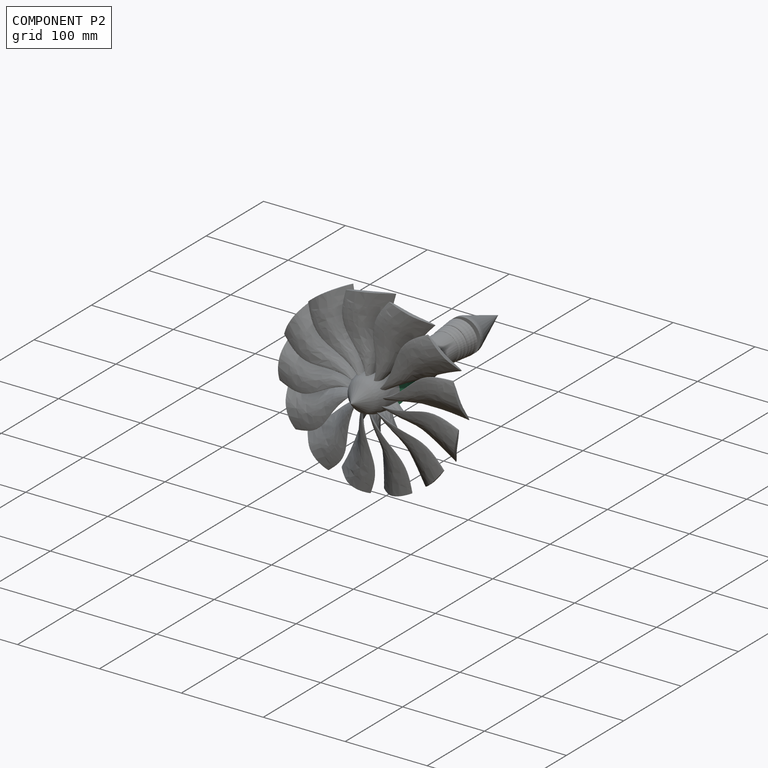
[diagram: component P2 — assembled]
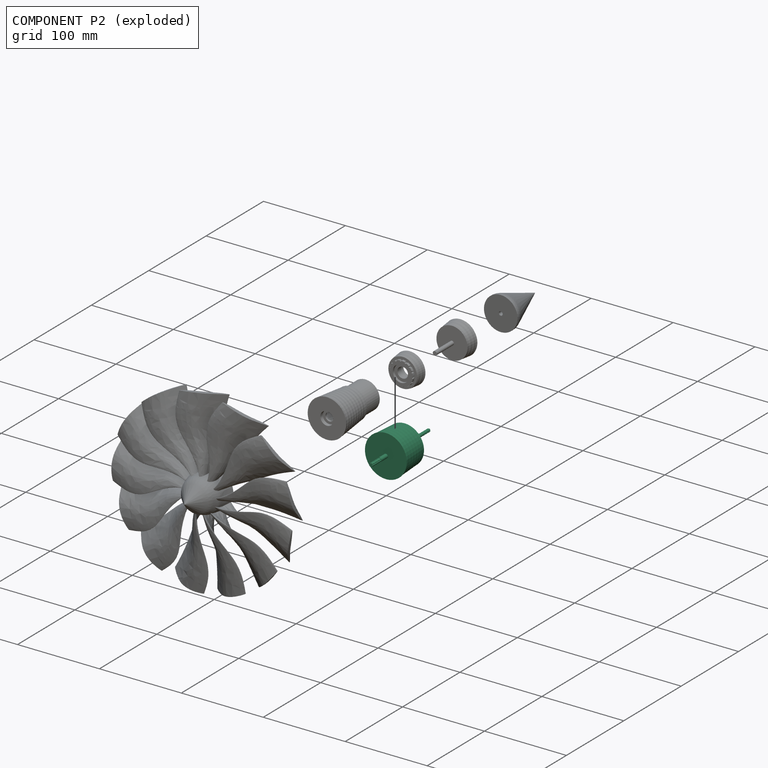
[diagram: component P2 — exploded]
COMPONENT P2 — recipe-attached (CADFS 00669139, mesh-verified: the recipe's output STEP matches this component's geometry to below the mesh-comparison resolution (tessellation chordal tolerance ~0.186 mm)).
Held by: PLANAR mate "Planar 1" to P5; CYLINDRICAL mate "Cylindrical 1" to P6; SLIDER mate "Slider 1" to P5; PLANAR mate "Planar 3" to P6; CYLINDRICAL mate "Cylindrical 1" to P6; PLANAR mate "Planar 3" to P6; SLIDER mate "Slider 1" to P5; PLANAR mate "Planar 1" to P5.
Construction recipe (FeatureScript — the CAD program that rebuilds this solid; sketch coordinates are in the units given by the * unit suffixes, e.g. mm):

FeatureScript 1511;
import(path : "onshape/std/geometry.fs", version : "1511.0");
import(path : "onshape/std/common.fs", version : "1511.0");
const mm = millimeter;
const VERTEX = EntityType.VERTEX;
const EDGE = EntityType.EDGE;
const FACE = EntityType.FACE;
const BODY = EntityType.BODY;
function v(x, y){return vector(x, y);}
function OD(order){return orderDisambiguation(order);}
function OSD(set){return originalSetDisambiguation(set);}
function TD(topology){return topologyDisambiguation(topology);}
function TDD(query){return trueDependencyDisambiguation(query);}
function sQuery(a, b, c) {return sketchEntityQuery(a, b, c);}

annotation { "Feature Type Name" : "Feature", "Feature Type Description" : "" }
export const myFeature = defineFeature(function(context is Context, id is Id, definition is map)
    precondition{}
    {
        {
            var Q0;
            Q0=qCreatedBy(makeId("Front.planeOp"),FACE);
            var sketch = newSketch(context, id + "F0", { "sketchPlane" : qUnion([Q0])});
            skCircle(sketch, "E0", {"center": v(0, 0) * mm, "radius": 2.48 * mm});
            skSolve(sketch);
        }
        {
            var Q0;
            Q0 = qSketchRegion(id + "F0", true);
            extrude(context, id + "F1", {"entities" : qUnion([Q0]), "depth" : 11 * mm, "offsetDistance" : 25 * mm});
        }
        {
            var Q0;
            Q0=makeQuery(id+"F1.opExtrude","CAP_FACE",FACE,{"disambiguationData":[OSD([sQuery(id+"F0.wireOp",EDGE,"E0")])],"isStart":false});
            var sketch = newSketch(context, id + "F2", { "sketchPlane" : qUnion([Q0])});
            skCircle(sketch, "E1", {"center": v(0, 0) * mm, "radius": 2.33 * mm, "construction": true});
            skArc(sketch, "E2", {"start": v(-0.65, 2.23) * mm, "mid": v(0, 1.67) * mm, "end": v(0.65, 2.23) * mm});
            skArc(sketch, "E3.1.0", {"start": v(-2.32, 0.07) * mm, "mid": v(-1.59, 0.52) * mm, "end": v(-1.92, 1.3) * mm});
            skArc(sketch, "E3.2.0", {"start": v(-0.79, -2.19) * mm, "mid": v(-0.98, -1.35) * mm, "end": v(-1.84, -1.42) * mm});
            skArc(sketch, "E3.3.0", {"start": v(1.84, -1.42) * mm, "mid": v(0.98, -1.35) * mm, "end": v(0.79, -2.19) * mm});
            skArc(sketch, "E3.4.0", {"start": v(1.92, 1.3) * mm, "mid": v(1.59, 0.52) * mm, "end": v(2.32, 0.07) * mm});
            skArc(sketch, "E4", {"start": v(1.92, 1.3) * mm, "mid": v(1.37, 1.88) * mm, "end": v(0.65, 2.23) * mm});
            skArc(sketch, "E5.1.0", {"start": v(-0.65, 2.23) * mm, "mid": v(-1.37, 1.88) * mm, "end": v(-1.92, 1.3) * mm});
            skArc(sketch, "E5.2.0", {"start": v(-2.32, 0.07) * mm, "mid": v(-2.21, -0.72) * mm, "end": v(-1.84, -1.42) * mm});
            skArc(sketch, "E5.3.0", {"start": v(-0.79, -2.19) * mm, "mid": v(0, -2.33) * mm, "end": v(0.79, -2.19) * mm});
            skArc(sketch, "E5.4.0", {"start": v(1.84, -1.42) * mm, "mid": v(2.21, -0.72) * mm, "end": v(2.32, 0.07) * mm});
            skSolve(sketch);
        }
        {
            var Q0;
            Q0 = qSketchRegion(id + "F2", true);
            extrude(context, id + "F3", {"entities" : qUnion([Q0]), "operationType" : NewBodyOperationType.ADD, "depth" : 15 * mm, "offsetDistance" : 25 * mm});
        }
        {
            var Q0;
            Q0=qCreatedBy(makeId("Right.planeOp"),FACE);
            var sketch = newSketch(context, id + "F4", { "sketchPlane" : qUnion([Q0])});
            skLineSegment(sketch, "E6", {"start": v(0, 0) * mm, "end": v(0, 25.5) * mm});
            skLineSegment(sketch, "E7", {"start": v(0, 25.5) * mm, "end": v(0.5, 25.5) * mm});
            skLineSegment(sketch, "E8", {"start": v(0.5, 25.5) * mm, "end": v(0.5, 25) * mm});
            skLineSegment(sketch, "E9", {"start": v(0.5, 25) * mm, "end": v(3, 25) * mm});
            skLineSegment(sketch, "E10", {"start": v(3, 25) * mm, "end": v(5.5, 24.75) * mm});
            skLineSegment(sketch, "E11", {"start": v(5.5, 24.75) * mm, "end": v(8, 24.75) * mm});
            skLineSegment(sketch, "E12", {"start": v(8, 24.75) * mm, "end": v(10.5, 24.5) * mm});
            skLineSegment(sketch, "E13", {"start": v(10.5, 24.5) * mm, "end": v(13, 24.5) * mm});
            skLineSegment(sketch, "E14", {"start": v(13, 24.5) * mm, "end": v(15.5, 24.25) * mm});
            skLineSegment(sketch, "E15", {"start": v(15.5, 24.25) * mm, "end": v(18, 24.25) * mm});
            skLineSegment(sketch, "E16", {"start": v(18, 24.25) * mm, "end": v(20.5, 24) * mm});
            skLineSegment(sketch, "E17", {"start": v(20.5, 24) * mm, "end": v(23, 24) * mm});
            skLineSegment(sketch, "E18", {"start": v(23, 24) * mm, "end": v(25.5, 23.75) * mm});
            skLineSegment(sketch, "E19", {"start": v(25.5, 23.75) * mm, "end": v(28, 23.75) * mm});
            skLineSegment(sketch, "E20", {"start": v(28, 23.75) * mm, "end": v(30.5, 23.5) * mm});
            skLineSegment(sketch, "E21", {"start": v(33, 2.47) * mm, "end": v(39, 2.47) * mm});
            skLineSegment(sketch, "E22", {"start": v(75, 0) * mm, "end": v(0, 0) * mm});
            skLineSegment(sketch, "E23", {"start": v(39, 2.47) * mm, "end": v(39, 1.97) * mm});
            skLineSegment(sketch, "E24", {"start": v(39, 1.97) * mm, "end": v(75, 1.98) * mm});
            skLineSegment(sketch, "E25", {"start": v(75, 1.98) * mm, "end": v(75, 0) * mm});
            skLineSegment(sketch, "E26", {"start": v(30.5, 23.5) * mm, "end": v(33, 23.5) * mm});
            skLineSegment(sketch, "E27", {"start": v(33, 23.5) * mm, "end": v(33, 2.47) * mm});
            skSolve(sketch);
        }
        {
            var Q0;
            Q0 = qSketchRegion(id + "F4", true);
            var Q1;
            Q1=makeQuery(id+"F1.opExtrude","CAP_EDGE",EDGE,{"disambiguationData":[OSD([sQuery(id+"F0.wireOp",EDGE,"E0")])],"isStart":true});
            revolve(context, id + "F5", {"operationType" : NewBodyOperationType.ADD, "entities" : qUnion([Q0]), "axis" : qUnion([Q1]), "revolveType" : RevolveType.FULL});
        }
        {
            var Q0;
            Q0=makeQuery(id+"F5.opRevolve","SWEPT_FACE",FACE,{"disambiguationData":[OSD([sQuery(id+"F4.wireOp",EDGE,"E25")])]});
            var sketch = newSketch(context, id + "F6", { "sketchPlane" : qUnion([Q0])});
            skArc(sketch, "E28", {"start": v(-0.62, 1.87) * mm, "mid": v(0, 1.54) * mm, "end": v(0.62, 1.87) * mm});
            skArc(sketch, "E29.1.0", {"start": v(-1.87, -0.62) * mm, "mid": v(-1.54, 0) * mm, "end": v(-1.87, 0.63) * mm});
            skArc(sketch, "E29.2.0", {"start": v(0.62, -1.87) * mm, "mid": v(0, -1.54) * mm, "end": v(-0.63, -1.87) * mm});
            skArc(sketch, "E29.3.0", {"start": v(1.87, 0.62) * mm, "mid": v(1.54, 0) * mm, "end": v(1.87, -0.63) * mm});
            skPoint(sketch, "E29.center", {"position": v(0, 0) * mm});
            skArc(sketch, "E30", {"start": v(-1.87, 0.62) * mm, "mid": v(-1.97, 0) * mm, "end": v(-1.87, -0.63) * mm});
            skArc(sketch, "E31.1.0", {"start": v(-0.62, -1.87) * mm, "mid": v(0, -1.97) * mm, "end": v(0.63, -1.87) * mm});
            skArc(sketch, "E31.2.0", {"start": v(1.87, -0.62) * mm, "mid": v(1.97, 0) * mm, "end": v(1.87, 0.63) * mm});
            skArc(sketch, "E31.3.0", {"start": v(0.62, 1.87) * mm, "mid": v(0, 1.97) * mm, "end": v(-0.63, 1.87) * mm});
            skSolve(sketch);
        }
        {
            var Q0;
            Q0 = qSketchRegion(id + "F6", true);
            extrude(context, id + "F7", {"entities" : qUnion([Q0]), "operationType" : NewBodyOperationType.REMOVE, "oppositeDirection" : true, "depth" : 10 * mm, "offsetDistance" : 25 * mm});
        }
    });
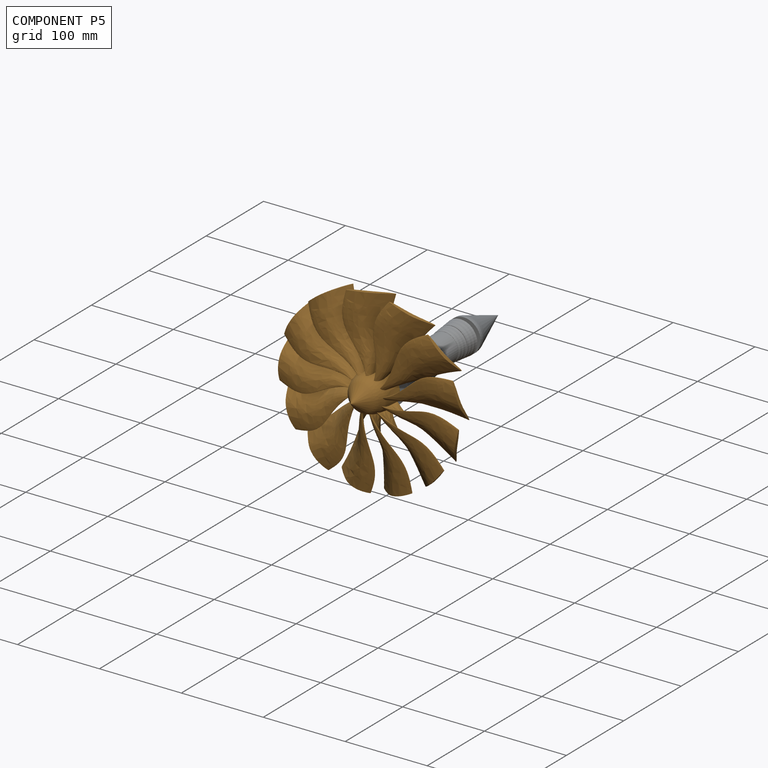
[diagram: component P5 — assembled]
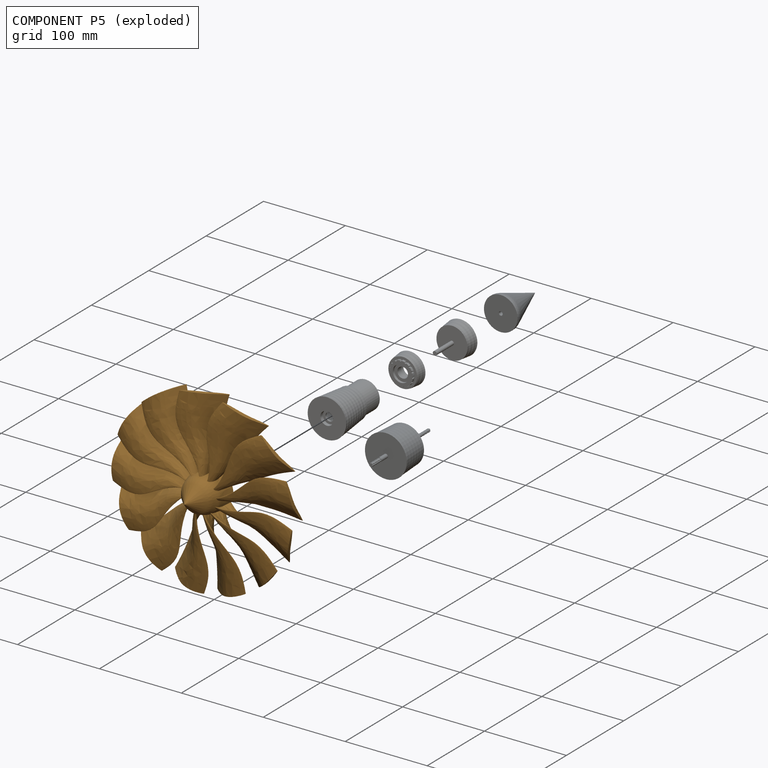
[diagram: component P5 — exploded]
COMPONENT P5 — geometry summary (no construction recipe available for this part):
  bounding box: 225.1 x 223.6 x 50.5 mm
  B-rep topology: 1 solid, 71 faces, 408 edges
  volume: 194617 mm^3 (8% of its bounding box)
Held by: PLANAR mate "Planar 1" to P2; SLIDER mate "Slider 1" to P2; SLIDER mate "Slider 1" to P2; PLANAR mate "Planar 1" to P2.
PROVENANCE & LICENSES
Assembly (occurrences, transforms, mates, per-part STEP geometry): AutoMate dataset, Zenodo record 7776208, CC0.
Construction recipes: CADFS (HuggingFace VladPyatov/CADFS, CC-BY-4.0, layered over the ABC dataset), FeatureScript reconstruction programs keyed by ABC model id.
Join: ABC meta listings map ABC model id -> Onshape documentId; within a shared document, parts are matched by geometric signature (bounding-box dims + volume at 0.1% relative tolerance, exact B-rep face/solid counts).
Verification: 5 of this assembly's 8 components carry a recipe attachment, and every attachment is mesh-verified: the CADFS STEP and the AutoMate member STEP were compared as meshes in their shared local frame (symmetric sampled-point-to-mesh distance); worst across the 5 attachments: below the mesh-comparison resolution (tessellation chordal tolerance ~0.186 mm) on a 124 mm part.
Renders: orthographic iso camera (az 35 / el 25); the floor grid conveys scale (grid pitch printed in each image; no ruler). In the exploded view each component is displaced by its stored offset vector: the offsets alone carry the explosion direction (mate normal/axis signs are not orientation cues and do not encode it), and separation distances are assigned per mate-chain, not proportionally to assembly-order depth.
